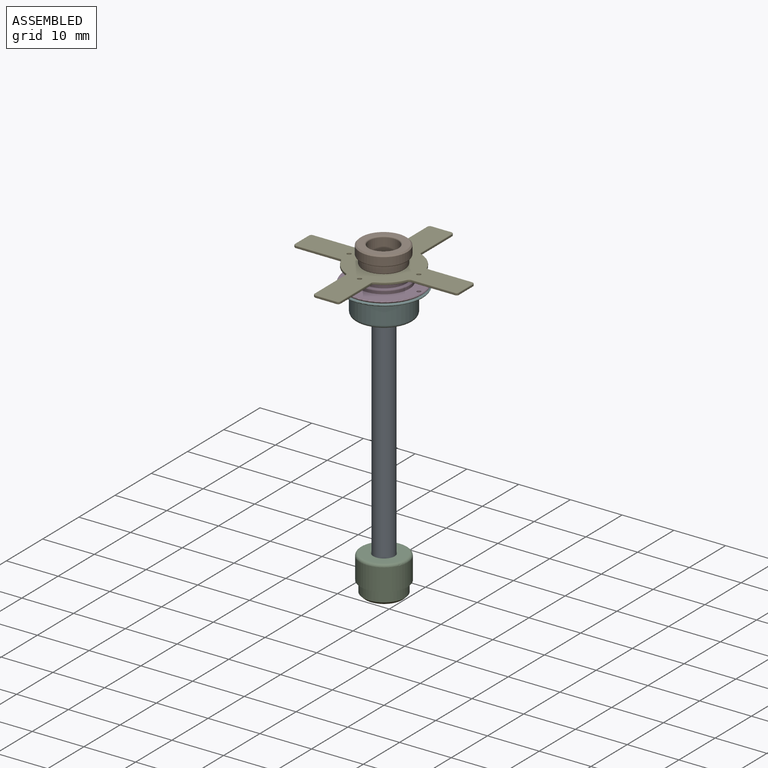
[diagram: assembled view]
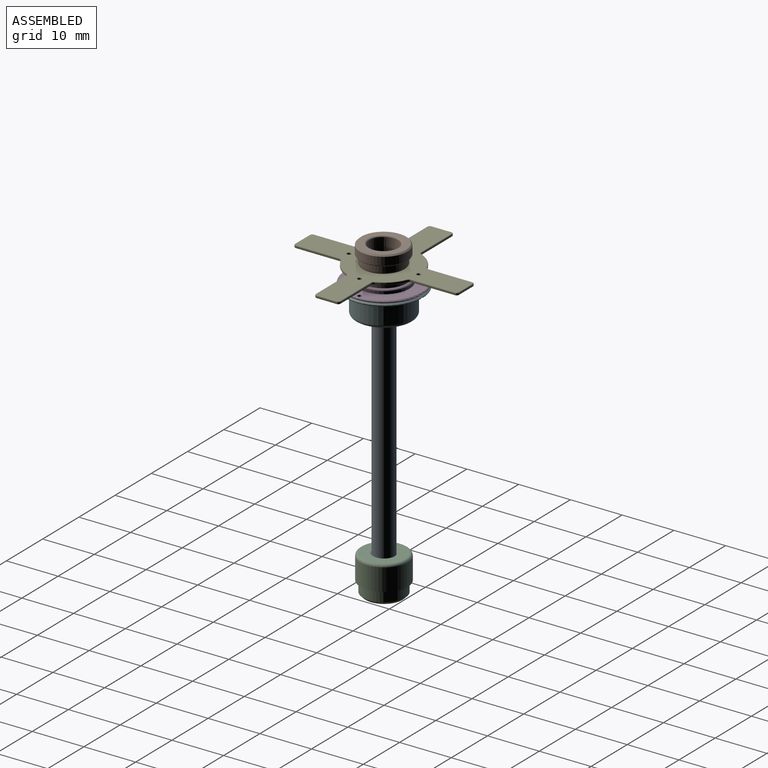
[diagram: assembled view, second angle]
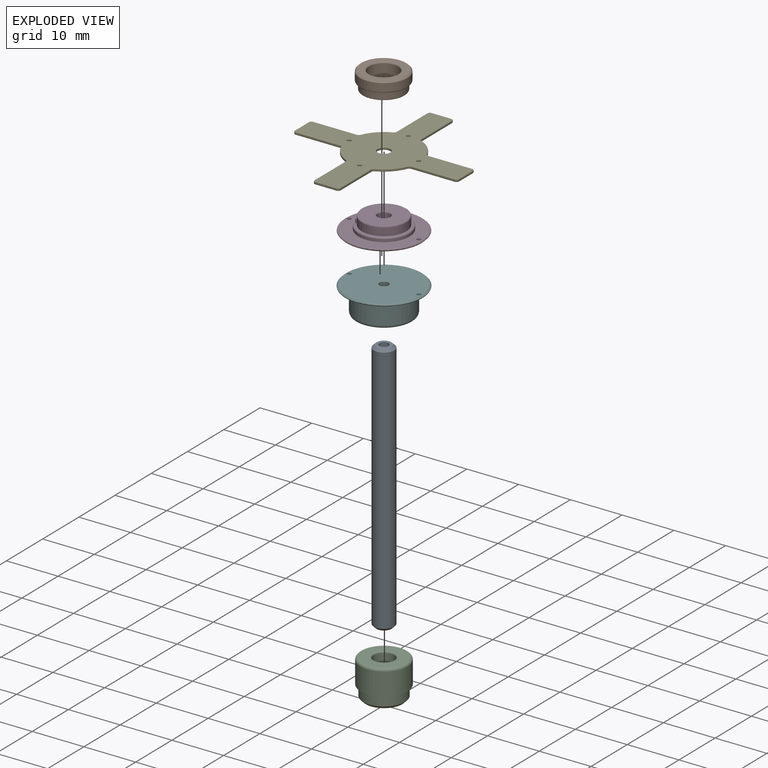
[diagram: exploded view]
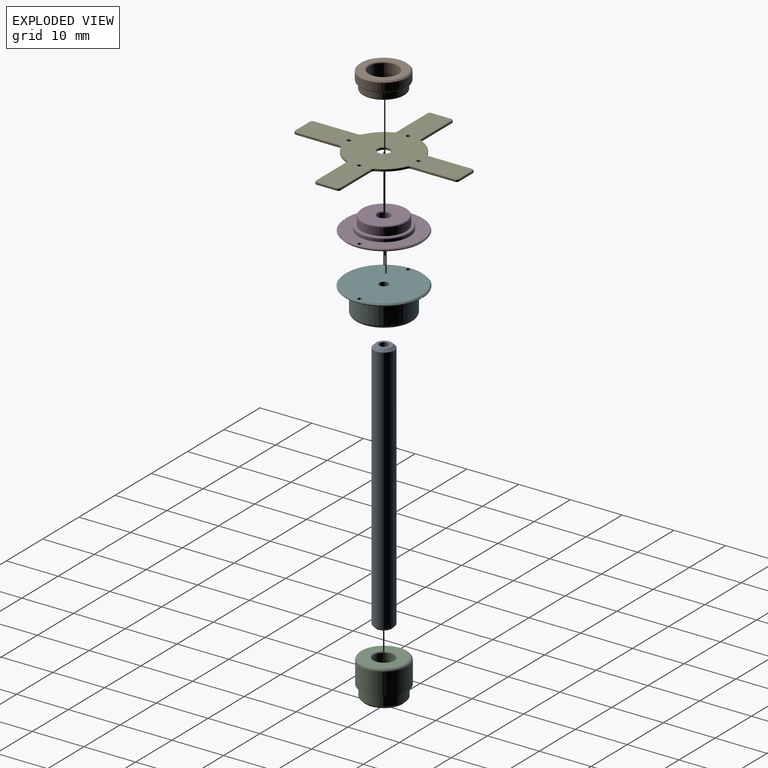
[diagram: exploded view, second angle]
ASSEMBLY  parts=6 mates=7
PART A: 7 faces, bbox 4x4x49.3 mm
  f0: cylinder r=1.98mm len=48.26mm, axis (0,0,-1), area 600.8mm2, adj f3,f4
  f1: plane 2.95x2.95mm, normal (0,0,1), area 4.3mm2, adj f4,f5
  f2: plane 2.95x2.95mm, normal (0,0,-1), area 6.8mm2, adj f3
  f3: cone r=1.98mm half-angle=45deg, axis (0,0,1), area 7.8mm2, adj f0,f2
  f4: cone r=1.47mm half-angle=45deg, axis (0,0,-1), area 7.8mm2, adj f0,f1
  f5: cylinder r=0.89mm len=5.08mm, axis (0,0,1), area 28.4mm2, adj f1,f6
  f6: plane 1.78x1.78mm, normal (0,0,1), area 2.5mm2, adj f5
PART B: 13 faces, bbox 9.9x9.9x3.6 mm
  f0: cylinder r=4.57mm len=9.14mm, axis (0,0,-1), area 43.8mm2, adj f7,f9
  f1: plane 8.64x8.64mm, normal (0,0,1), area 6.7mm2, adj f3,f9
  f2: plane 8.64x8.64mm, normal (0,0,-1), area 29.4mm2, adj f7,f8
  f3: cylinder r=4.06mm len=8.13mm, axis (0,0,-1), area 32.4mm2, adj f1,f12
  f4: plane 7.62x7.62mm, normal (0,0,1), area 38.3mm2, adj f11,f12
  f5: cylinder r=2.79mm len=5.59mm, axis (0,0,-1), area 49mm2, adj f6,f8
  f6: plane 5.59x5.59mm, normal (0,0,-1), area 19.5mm2, adj f5,f10
  f7: cone r=4.57mm half-angle=45deg, axis (0,0,1), area 10mm2, adj f0,f2
  f8: torus R=3.05mm, axis (0,0,1), area 7.2mm2, adj f2,f5
  f9: torus R=4.32mm, axis (0,0,1), area 11.2mm2, adj f0,f1
  f10: cylinder r=1.27mm len=2.54mm, axis (0,0,-1), area 2mm2, adj f6,f11
  f11: torus R=1.52mm, axis (0,0,1), area 3.4mm2, adj f4,f10
  f12: torus R=3.81mm, axis (0,0,1), area 10mm2, adj f3,f4
PART C: 10 faces, bbox 9.9x9.9x7.3 mm
  f0: cylinder r=4.06mm len=8.13mm, axis (0,0,-1), area 51.9mm2, adj f4,f9
  f1: plane 7.11x7.11mm, normal (0,0,-1), area 39.7mm2, adj f9
  f2: cylinder r=4.57mm len=9.14mm, axis (0,0,-1), area 122.2mm2, adj f4,f5
  f3: plane 8.13x8.13mm, normal (0,0,1), area 36.1mm2, adj f5,f8
  f4: plane 9.14x9.14mm, normal (0,0,-1), area 13.8mm2, adj f0,f2
  f5: torus R=4.06mm, axis (0,0,1), area 22mm2, adj f2,f3
  f6: cylinder r=1.99mm len=3.98mm, axis (0,0,1), area 44.4mm2, adj f7,f8
  f7: plane 3.98x3.98mm, normal (0,0,1), area 12.4mm2, adj f6
  f8: torus R=2.24mm, axis (0,0,1), area 5.2mm2, adj f3,f6
  f9: cone r=4.06mm half-angle=45deg, axis (0,0,1), area 17.2mm2, adj f0,f1
PART D: 18 faces, bbox 16.2x16.2x3 mm
  f0: plane 9.35x9.35mm, normal (0,0,1), area 10mm2, adj f1,f12,f13
  f1: cylinder r=4.32mm len=8.64mm, axis (0,0,-1), area 40.9mm2, adj f0,f13,f14,f15,f16
  f2: plane 14.48x14.48mm, normal (0,0,1), area 87.4mm2, adj f6,f7,f8,f17
  f3: plane 14.48x14.48mm, normal (0,0,-1), area 157mm2, adj f4,f5,f6,f7
  f4: cone r=1.46mm half-angle=45deg, axis (0,0,-1), area 3mm2, adj f3,f10
  f5: cone r=7.49mm half-angle=45deg, axis (0,0,1), area 16.6mm2, adj f3,f17
  f6: cylinder r=0.38mm len=0.76mm, axis (0,0,1), area 1.2mm2, adj f2,f3
  f7: cylinder r=0.38mm len=0.76mm, axis (0,0,1), area 1.2mm2, adj f2,f3
  f8: cylinder r=4.93mm len=9.86mm, axis (0,0,-1), area 15.7mm2, adj f2,f12
  f9: torus R=1.46mm, axis (0,0,1), area 3.3mm2, adj f10,f11
  f10: cylinder r=1.21mm len=2.54mm, axis (0,0,1), area 19.3mm2, adj f4,f9
  f11: plane 8.13x8.13mm, normal (0,0,1), area 45.2mm2, adj f9,f16
  f12: torus R=4.68mm, axis (0,0,1), area 12.1mm2, adj f0,f8
  f13: cylinder r=0.31mm len=0.64mm, axis (0,0,-1), area 0.6mm2, adj f0,f1,f15
  f14: plane 0.35x0.26mm, normal (0,0,1), area 0.1mm2, adj f1,f15
  f15: torus R=0.18mm, axis (0,0,1), area 0.2mm2, adj f1,f13,f14
  f16: torus R=4.06mm, axis (0,0,1), area 10.6mm2, adj f1,f11
  f17: torus R=7.24mm, axis (0,0,1), area 18.6mm2, adj f2,f5
PART E: 113 faces, bbox 31.8x31.8x0.5 mm
  f0: plane 8.57x0.25mm, normal (-1,0,0), area 2.2mm2, adj f23,f38,f69,f100
  f1: plane 4.05x0.25mm, normal (0,-1,0), area 1mm2, adj f23,f24,f65,f96
  f2: plane 8.47x0.25mm, normal (1,0,0), area 2.2mm2, adj f24,f25,f61,f92
  f3: cylinder r=6.99mm len=3.71mm, axis (0,0,-1), area 1.4mm2, adj f25,f26,f57,f88
  f4: plane 8.47x0.25mm, normal (0,-1,0), area 2.2mm2, adj f26,f27,f53,f84
  f5: plane 3.81x0.25mm, normal (1,0,0), area 1mm2, adj f27,f28,f49,f80
  f6: plane 8.47x0.25mm, normal (0,1,0), area 2.2mm2, adj f28,f29,f45,f76
  f7: cylinder r=6.99mm len=3.71mm, axis (0,0,-1), area 1.4mm2, adj f29,f30,f41,f72
  f8: plane 8.47x0.25mm, normal (1,0,0), area 2.2mm2, adj f30,f31,f40,f73
  f9: plane 3.81x0.25mm, normal (0,1,0), area 1mm2, adj f31,f32,f44,f77
  f10: plane 8.47x0.25mm, normal (-1,0,0), area 2.2mm2, adj f32,f33,f48,f81
  f11: cylinder r=6.99mm len=3.71mm, axis (0,0,-1), area 1.4mm2, adj f33,f34,f52,f85
  f12: plane 8.47x0.25mm, normal (0,1,0), area 2.2mm2, adj f34,f35,f56,f89
  f13: plane 3.81x0.25mm, normal (-1,0,0), area 1mm2, adj f35,f36,f60,f93
  f14: plane 8.47x0.25mm, normal (0,-1,0), area 2.2mm2, adj f36,f37,f64,f97
  f15: cylinder r=6.99mm len=3.61mm, axis (0,0,-1), area 1.3mm2, adj f37,f38,f68,f101
  f16: plane 31.5x31.5mm, normal (0,0,1), area 306.1mm2, adj f39,f40,f41,f42,f43,f44,f45,f46
  f17: plane 31.5x31.5mm, normal (0,0,-1), area 306.1mm2, adj f71,f72,f73,f74,f75,f76,f77,f78
  f18: cylinder r=1.21mm len=2.41mm, axis (0,0,1), area 1.9mm2, adj f107,f112
  f19: cylinder r=0.38mm len=0.76mm, axis (0,0,1), area 0.6mm2, adj f106,f108
  f20: cylinder r=0.38mm len=0.76mm, axis (0,0,1), area 0.6mm2, adj f105,f109
  f21: cylinder r=0.38mm len=0.76mm, axis (0,0,1), area 0.6mm2, adj f104,f110
  f22: cylinder r=0.38mm len=0.76mm, axis (0,0,1), area 0.6mm2, adj f103,f111
  f23: cylinder r=0.51mm len=0.51mm, axis (0,0,-1), area 0.2mm2, adj f0,f1,f67,f98
  f24: cylinder r=0.51mm len=0.51mm, axis (0,0,1), area 0.2mm2, adj f1,f2,f63,f94
  f25: cylinder r=0.51mm len=0.47mm, axis (0,0,-1), area 0.2mm2, adj f2,f3,f59,f90
  f26: cylinder r=0.51mm len=0.47mm, axis (0,0,-1), area 0.2mm2, adj f3,f4,f55,f86
  f27: cylinder r=0.51mm len=0.51mm, axis (0,0,1), area 0.2mm2, adj f4,f5,f51,f82
  f28: cylinder r=0.51mm len=0.51mm, axis (0,0,-1), area 0.2mm2, adj f5,f6,f47,f78
  f29: cylinder r=0.51mm len=0.47mm, axis (0,0,-1), area 0.2mm2, adj f6,f7,f43,f74
  f30: cylinder r=0.51mm len=0.47mm, axis (0,0,-1), area 0.2mm2, adj f7,f8,f39,f71
  f31: cylinder r=0.51mm len=0.51mm, axis (0,0,-1), area 0.2mm2, adj f8,f9,f42,f75
  f32: cylinder r=0.51mm len=0.51mm, axis (0,0,1), area 0.2mm2, adj f9,f10,f46,f79
  f33: cylinder r=0.51mm len=0.47mm, axis (0,0,-1), area 0.2mm2, adj f10,f11,f50,f83
  f34: cylinder r=0.51mm len=0.47mm, axis (0,0,-1), area 0.2mm2, adj f11,f12,f54,f87
  f35: cylinder r=0.51mm len=0.51mm, axis (0,0,1), area 0.2mm2, adj f12,f13,f58,f91
  f36: cylinder r=0.51mm len=0.51mm, axis (0,0,-1), area 0.2mm2, adj f13,f14,f62,f95
  f37: cylinder r=0.51mm len=0.47mm, axis (0,0,-1), area 0.2mm2, adj f14,f15,f66,f99
  f38: cylinder r=0.51mm len=0.46mm, axis (0,0,-1), area 0.1mm2, adj f0,f15,f70,f102
  f39: torus R=0.64mm, axis (0,0,1), area 0.1mm2, adj f16,f30,f40,f41
  f40: cylinder r=0.13mm len=8.47mm, axis (0,-1,0), area 1.7mm2, adj f8,f16,f39,f42
  f41: torus R=6.86mm, axis (0,0,1), area 1.1mm2, adj f7,f16,f39,f43
  f42: torus R=0.38mm, axis (0,0,1), area 0.1mm2, adj f16,f31,f40,f44
  f43: torus R=0.64mm, axis (0,0,1), area 0.1mm2, adj f16,f29,f41,f45
  f44: cylinder r=0.13mm len=3.81mm, axis (1,0,0), area 0.8mm2, adj f9,f16,f42,f46
  f45: cylinder r=0.13mm len=8.47mm, axis (1,0,0), area 1.7mm2, adj f6,f16,f43,f47
  f46: torus R=0.38mm, axis (0,0,1), area 0.1mm2, adj f16,f32,f44,f48
  f47: torus R=0.38mm, axis (0,0,1), area 0.1mm2, adj f16,f28,f45,f49
  f48: cylinder r=0.13mm len=8.47mm, axis (0,1,0), area 1.7mm2, adj f10,f16,f46,f50
  f49: cylinder r=0.13mm len=3.81mm, axis (0,-1,0), area 0.8mm2, adj f5,f16,f47,f51
  f50: torus R=0.64mm, axis (0,0,1), area 0.1mm2, adj f16,f33,f48,f52
  f51: torus R=0.38mm, axis (0,0,1), area 0.1mm2, adj f16,f27,f49,f53
  f52: torus R=6.86mm, axis (0,0,1), area 1.1mm2, adj f11,f16,f50,f54
  f53: cylinder r=0.13mm len=8.47mm, axis (-1,0,0), area 1.7mm2, adj f4,f16,f51,f55
  f54: torus R=0.64mm, axis (0,0,1), area 0.1mm2, adj f16,f34,f52,f56
  f55: torus R=0.64mm, axis (0,0,1), area 0.1mm2, adj f16,f26,f53,f57
  f56: cylinder r=0.13mm len=8.47mm, axis (1,0,0), area 1.7mm2, adj f12,f16,f54,f58
  f57: torus R=6.86mm, axis (0,0,1), area 1.1mm2, adj f3,f16,f55,f59
  f58: torus R=0.38mm, axis (0,0,1), area 0.1mm2, adj f16,f35,f56,f60
  f59: torus R=0.64mm, axis (0,0,1), area 0.1mm2, adj f16,f25,f57,f61
  f60: cylinder r=0.13mm len=3.81mm, axis (0,1,0), area 0.8mm2, adj f13,f16,f58,f62
  f61: cylinder r=0.13mm len=8.47mm, axis (0,-1,0), area 1.7mm2, adj f2,f16,f59,f63
  f62: torus R=0.38mm, axis (0,0,1), area 0.1mm2, adj f16,f36,f60,f64
  f63: torus R=0.38mm, axis (0,0,1), area 0.1mm2, adj f16,f24,f61,f65
  f64: cylinder r=0.13mm len=8.47mm, axis (-1,0,0), area 1.7mm2, adj f14,f16,f62,f66
  f65: cylinder r=0.13mm len=4.05mm, axis (-1,0,0), area 0.8mm2, adj f1,f16,f63,f67
  f66: torus R=0.64mm, axis (0,0,1), area 0.1mm2, adj f16,f37,f64,f68
  f67: torus R=0.38mm, axis (0,0,1), area 0.1mm2, adj f16,f23,f65,f69
  f68: torus R=6.86mm, axis (0,0,1), area 1mm2, adj f15,f16,f66,f70
  f69: cylinder r=0.13mm len=8.57mm, axis (0,1,0), area 1.7mm2, adj f0,f16,f67,f70
  f70: torus R=0.64mm, axis (0,0,1), area 0.1mm2, adj f16,f38,f68,f69
  f71: torus R=0.64mm, axis (0,0,1), area 0.1mm2, adj f17,f30,f72,f73
  f72: torus R=6.86mm, axis (0,0,1), area 1.1mm2, adj f7,f17,f71,f74
  f73: cylinder r=0.13mm len=8.47mm, axis (0,1,0), area 1.7mm2, adj f8,f17,f71,f75
  f74: torus R=0.64mm, axis (0,0,1), area 0.1mm2, adj f17,f29,f72,f76
  f75: torus R=0.38mm, axis (0,0,1), area 0.1mm2, adj f17,f31,f73,f77
  f76: cylinder r=0.13mm len=8.47mm, axis (-1,0,0), area 1.7mm2, adj f6,f17,f74,f78
  f77: cylinder r=0.13mm len=3.81mm, axis (-1,0,0), area 0.8mm2, adj f9,f17,f75,f79
  f78: torus R=0.38mm, axis (0,0,1), area 0.1mm2, adj f17,f28,f76,f80
  f79: torus R=0.38mm, axis (0,0,1), area 0.1mm2, adj f17,f32,f77,f81
  f80: cylinder r=0.13mm len=3.81mm, axis (0,1,0), area 0.8mm2, adj f5,f17,f78,f82
  f81: cylinder r=0.13mm len=8.47mm, axis (0,-1,0), area 1.7mm2, adj f10,f17,f79,f83
  f82: torus R=0.38mm, axis (0,0,1), area 0.1mm2, adj f17,f27,f80,f84
  f83: torus R=0.64mm, axis (0,0,1), area 0.1mm2, adj f17,f33,f81,f85
  f84: cylinder r=0.13mm len=8.47mm, axis (1,0,0), area 1.7mm2, adj f4,f17,f82,f86
  f85: torus R=6.86mm, axis (0,0,1), area 1.1mm2, adj f11,f17,f83,f87
  f86: torus R=0.64mm, axis (0,0,1), area 0.1mm2, adj f17,f26,f84,f88
  f87: torus R=0.64mm, axis (0,0,1), area 0.1mm2, adj f17,f34,f85,f89
  f88: torus R=6.86mm, axis (0,0,1), area 1.1mm2, adj f3,f17,f86,f90
  f89: cylinder r=0.13mm len=8.47mm, axis (-1,0,0), area 1.7mm2, adj f12,f17,f87,f91
  f90: torus R=0.64mm, axis (0,0,1), area 0.1mm2, adj f17,f25,f88,f92
  f91: torus R=0.38mm, axis (0,0,1), area 0.1mm2, adj f17,f35,f89,f93
  f92: cylinder r=0.13mm len=8.47mm, axis (0,1,0), area 1.7mm2, adj f2,f17,f90,f94
  f93: cylinder r=0.13mm len=3.81mm, axis (0,-1,0), area 0.8mm2, adj f13,f17,f91,f95
  f94: torus R=0.38mm, axis (0,0,1), area 0.1mm2, adj f17,f24,f92,f96
  f95: torus R=0.38mm, axis (0,0,1), area 0.1mm2, adj f17,f36,f93,f97
  f96: cylinder r=0.13mm len=4.05mm, axis (1,0,0), area 0.8mm2, adj f1,f17,f94,f98
  f97: cylinder r=0.13mm len=8.47mm, axis (1,0,0), area 1.7mm2, adj f14,f17,f95,f99
  f98: torus R=0.38mm, axis (0,0,1), area 0.1mm2, adj f17,f23,f96,f100
  f99: torus R=0.64mm, axis (0,0,1), area 0.1mm2, adj f17,f37,f97,f101
  f100: cylinder r=0.13mm len=8.57mm, axis (0,-1,0), area 1.7mm2, adj f0,f17,f98,f102
  f101: torus R=6.86mm, axis (0,0,1), area 1mm2, adj f15,f17,f99,f102
  f102: torus R=0.64mm, axis (0,0,1), area 0.1mm2, adj f17,f38,f100,f101
  f103: torus R=0.51mm, axis (0,0,1), area 0.5mm2, adj f17,f22
  f104: torus R=0.51mm, axis (0,0,1), area 0.5mm2, adj f17,f21
  f105: torus R=0.51mm, axis (0,0,1), area 0.5mm2, adj f17,f20
  f106: torus R=0.51mm, axis (0,0,1), area 0.5mm2, adj f17,f19
  f107: torus R=1.33mm, axis (0,0,1), area 1.6mm2, adj f17,f18
  f108: torus R=0.51mm, axis (0,0,1), area 0.5mm2, adj f16,f19
  f109: torus R=0.51mm, axis (0,0,1), area 0.5mm2, adj f16,f20
  f110: torus R=0.51mm, axis (0,0,1), area 0.5mm2, adj f16,f21
  f111: torus R=0.51mm, axis (0,0,1), area 0.5mm2, adj f16,f22
  f112: torus R=1.33mm, axis (0,0,1), area 1.6mm2, adj f16,f18
PART F: 17 faces, bbox 16.3x16.3x5.3 mm
  f0: plane 14.55x14.55mm, normal (0,0,1), area 49.9mm2, adj f8,f10,f11,f16
  f1: plane 14.55x14.55mm, normal (0,0,-1), area 163mm2, adj f9,f10,f11,f12
  f2: cylinder r=5.56mm len=11.11mm, axis (0,0,-1), area 126.4mm2, adj f4,f8
  f3: plane 9.84x9.84mm, normal (0,0,1), area 57.8mm2, adj f4,f7,f15
  f4: torus R=4.92mm, axis (0,0,1), area 33.4mm2, adj f2,f3
  f5: cylinder r=1.99mm len=3.98mm, axis (0,0,1), area 44.4mm2, adj f6,f7
  f6: plane 3.98x3.98mm, normal (0,0,1), area 9.9mm2, adj f5,f12
  f7: torus R=2.24mm, axis (0,0,1), area 5.2mm2, adj f3,f5
  f8: torus R=6.06mm, axis (0,0,1), area 28.8mm2, adj f0,f2
  f9: cone r=7.53mm half-angle=45deg, axis (0,0,1), area 16.7mm2, adj f1,f16
  f10: cylinder r=0.38mm len=0.76mm, axis (0,0,1), area 1.2mm2, adj f0,f1
  f11: cylinder r=0.38mm len=0.76mm, axis (0,0,1), area 1.2mm2, adj f0,f1
  f12: cylinder r=0.89mm len=1.78mm, axis (0,0,1), area 8.2mm2, adj f1,f6
  f13: cylinder r=0.64mm len=2.29mm, axis (0,0,1), area 9.1mm2, adj f14,f15
  f14: plane 1.27x1.27mm, normal (0,0,1), area 1.3mm2, adj f13
  f15: cone r=0.64mm half-angle=45deg, axis (0,0,1), area 1.7mm2, adj f3,f13
  f16: torus R=7.28mm, axis (0,0,1), area 18.6mm2, adj f0,f9
PLACE A t=(0,-10.16,3.49)mm
PLACE B rot(axis=(1,0,0),180deg) t=(15.22,41.83,61.34)mm
PLACE C at identity fixed
PLACE D t=(0,-41.91,54.23)mm
PLACE E t=(30.35,-15.88,57.28)mm
PLACE F rot(axis=(1,0,0),180deg) t=(0,24.13,54.23)mm
MATE planar A.f0 <-> F.f2  axis (0,0,1) through (0,0,52.77)mm
MATE cylindrical A.f0 <-> F.f2  axis (0,0,-1) through (0,0,28.13)mm
MATE planar C.f0 <-> A.f0  axis (0,0,1) through (0,0,3.49)mm
MATE planar B.f0 <-> E.f16  axis (0,0,-1) through (-0.02,-0.08,57.78)mm
MATE planar D.f1 <-> E.f3  axis (0,0,1) through (0,0,57.28)mm
MATE cylindrical C.f0 <-> A.f0  axis (0,0,1) through (0,0,5.27)mm
MATE revolute F.f2 <-> D.f1  axis (0,0,1) through (0,0,54.23)mm
